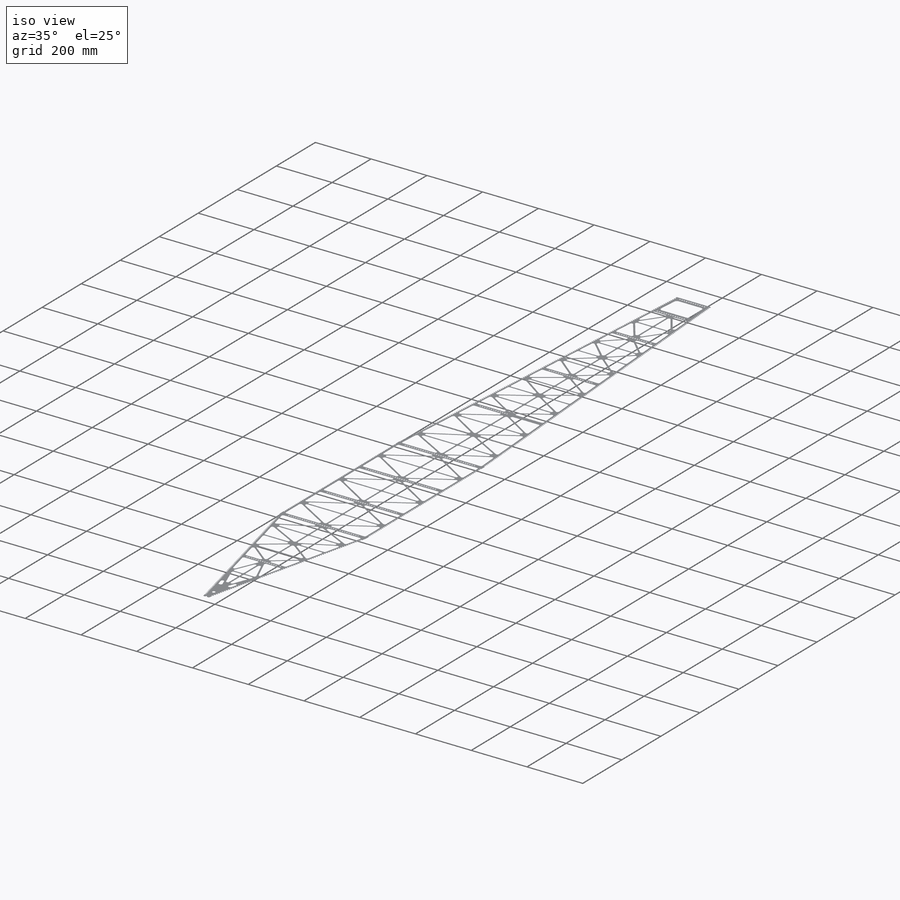
[diagram: iso view]
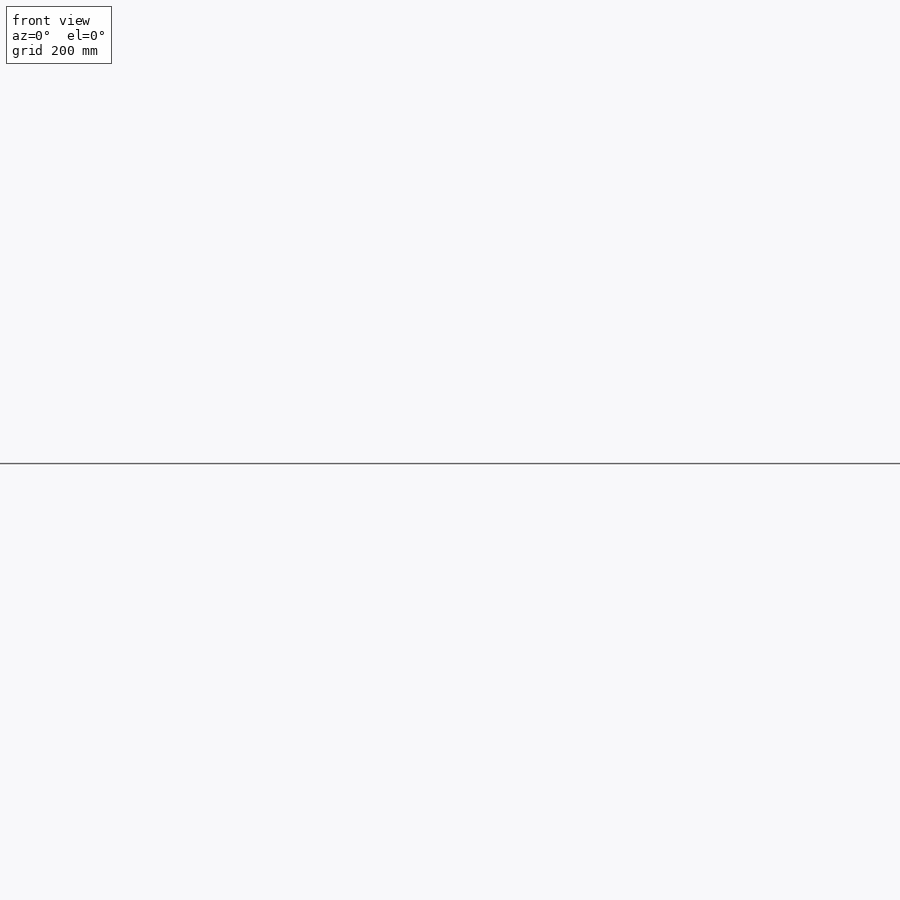
[diagram: front view]
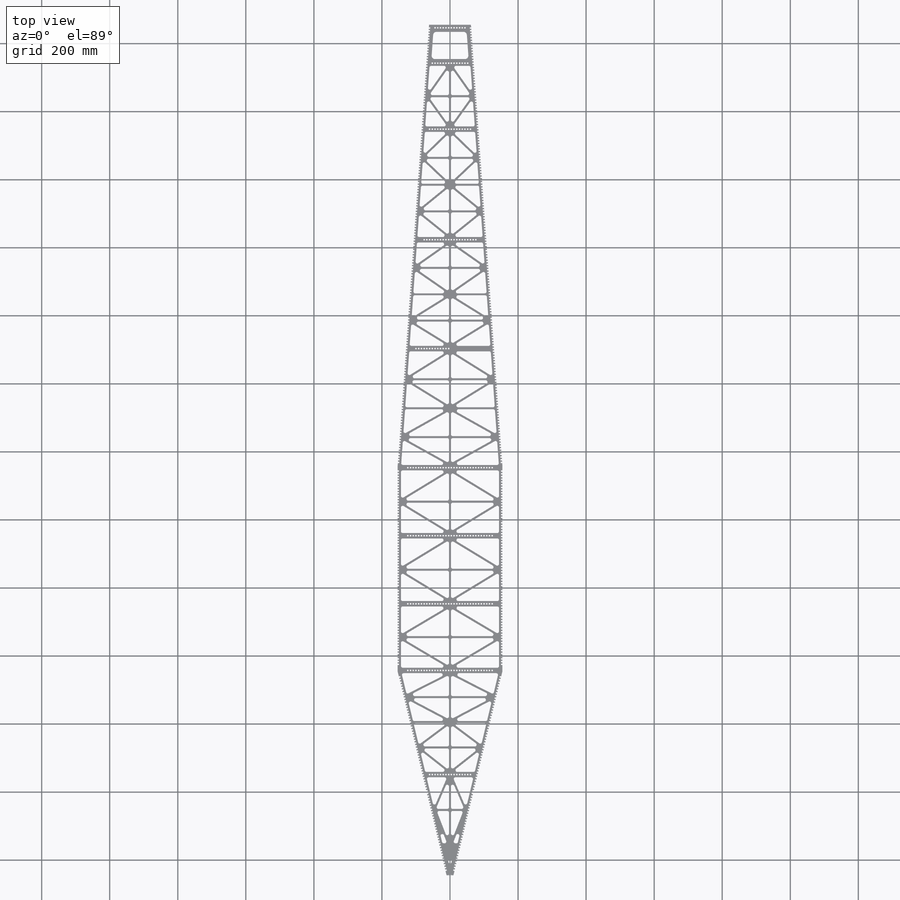
[diagram: top view]
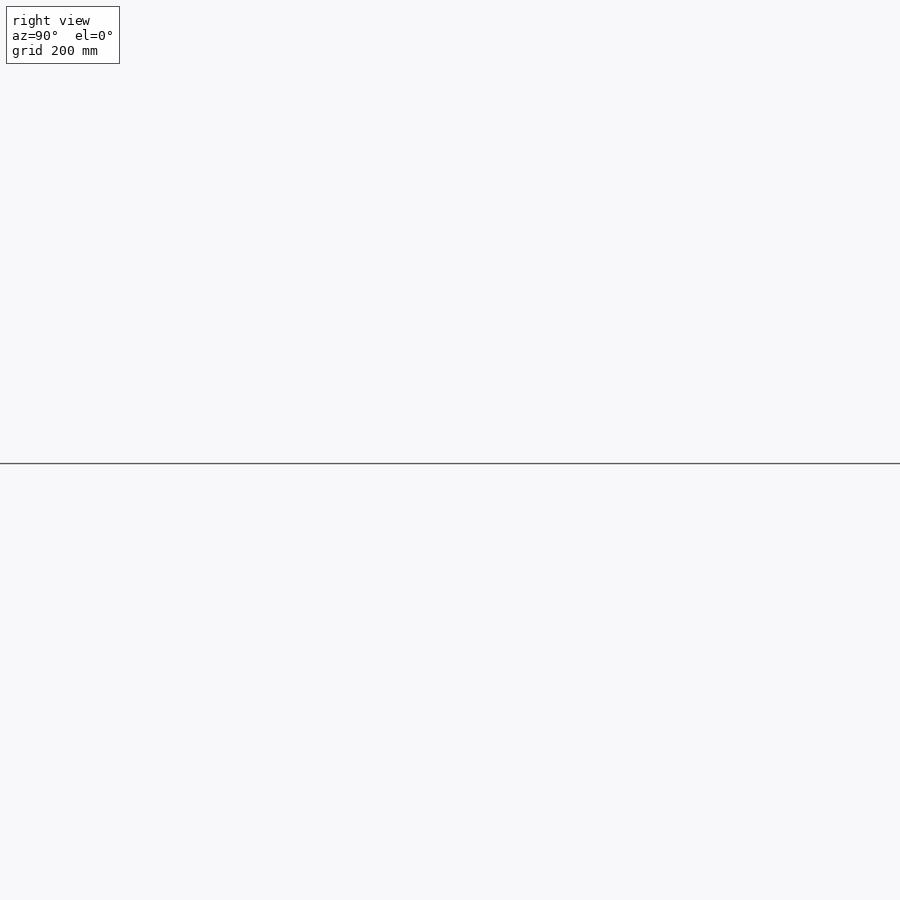
[diagram: right view]
SOLIDWORKS PART (.sldprt)
format: sldprt  version: not decoded by parser v0  size: 6,854,144 bytes
history: native  units: mm
features: sketch x7, cut_extrude x4, extrude x2, material x1 (+13 scaffold rows collapsed)
feature tree (27):
  scaffold x13  (default folders/planes/origin — collapsed)
  material  "Cedar"
  sketch  "Sketch1"  dims[c1.D48=10.0mm c1.D1=115.0mm c1.D2=300.0mm c2.D2=90.0deg c3.D2=300.0mm c4.D2=90.0deg c5.D2=300.0mm c6.D2=90.0deg c7.D2=300.0mm c7.D3=300.0mm c8.D2=300.0mm c8.D3=12.0mm c8.D4=7.0mm c8.D5=100.0mm c8.D6=~115.98855mm c8.D7=2.0mm c8.D8=4.0mm c8.D9=4.0mm c8.D11=~130.796154mm c8.D12=4.0mm c8.D13=4.0mm c9.D5=100.0mm c9.D15=189.0mm c9.D16=4.0mm c9.D17=4.0mm c9.D19=321.0mm c9.D20=4.0mm c9.D21=4.0mm c9.D23=321.0mm c9.D24=4.0mm c9.D25=4.0mm c9.D27=57.5mm c9.D6=116.0mm c10.D27=346.0mm c10.D28=300.0mm c11.D27=346.0mm c11.D28=4.0mm c11.D5=4.0mm c11.D7=2.0mm c11.D8=4.0mm c11.D10=2.0mm c11.D12=2.0mm c11.D13=4.0mm c12.D12=2.0mm c12.D13=4.0mm c12.D14=4.0mm c12.D15=100.0mm c12.D16=4.0mm c12.D17=2.0mm c12.D18=4.0mm c12.D19=4.0mm c12.D20=2.0mm c12.D21=4.0mm c12.D22=2.0mm c12.D23=4.0mm c12.D28=4.0mm c12.D29=196.0mm c12.D30=4.0mm c12.D31=196.0mm c12.D32=4.0mm c12.D33=202.0mm c12.D34=300.0mm c13.D33=202.0mm c13.D31=196.0mm c14.D33=196.0mm c14.D34=2.0mm c14.D35=4.0mm c14.D36=4.0mm c14.D37=300.0mm c14.D38=292.0mm c14.D39=2.0mm c14.D40=4.0mm c14.D41=4.0mm c15.D38=4.0mm c15.D43=4.0mm c15.D44=10.0mm c15.D45=10.0mm c15.D46=10.0mm c15.D47=10.0mm c15.D49=292.0mm c15.D50=4.0mm c15.D51=6.0mm c15.D12=2.0mm c15.D52=4.0mm c15.D27=346.0mm c15.D53=4.0mm c15.D29=196.0mm c15.D31=196.0mm c16.D49=292.0mm c16.D53=115.0mm c16.D54=100.0mm c16.D55=190.0mm c16.D56=321.0mm c16.D57=316.0mm c16.D6=316.0mm c17.D55=321.0mm c17.D56=190.0mm c17.D44=10.0mm c17.D9=4.0mm c17.D54=100.0mm c17.D57=~157.966821mm c18.D56=190.0mm c18.D57=~158.403846mm c18.D37=192.0mm c18.D49=300.0mm c19.D57=292.0mm c19.D58=57.5mm c19.D12=4.0mm c19.D13=4.0mm c19.D14=2.0mm c19.D47=190.0mm c19.D54=100.0mm c19.D56=4.0mm c20.D58=196.0mm c20.D59=300.0mm c20.D1=4.0mm c20.D2=4.0mm c20.D6=4.0mm c20.D7=150.0mm c20.D8=4.0mm c20.D9=196.0mm c20.D10=4.0mm c20.D11=196.0mm c20.D12=192.0mm c20.D13=4.0mm c20.D14=302.0mm c20.D15=290.0mm c20.D16=4.0mm c20.D17=346.0mm c20.D18=4.0mm c20.D19=316.0mm c20.D20=4.0mm c20.D21=321.0mm c20.D22=190.0mm c20.D23=4.0mm c20.D24=100.0mm c20.D25=10.0mm c20.D26=10.0mm c20.D27=150.0mm c20.D28=4.0mm c20.D29=2.0mm c20.D31=4.0mm c20.D33=4.0mm c20.D35=4.0mm c20.D37=4.0mm c20.D40=4.0mm c20.D42=4.0mm c20.D30=6.0 c20.D32=7.0 c20.D34=8.0 c20.D36=10.0 c20.D39=13.0 c20.D41=16.0 c20.D44=8.0]
  extrude  "Boss-Extrude2"  Depth=4mm
  sketch  "Sketch4"  dims[c1.D1=4.0mm c1.D2=4.0mm c1.D3=4.0mm c1.D5=20.0mm c1.D6=4.0mm c1.D7=4.0mm c1.D9=4.0mm c1.D10=4.0mm c1.D11=4.0mm c1.D12=4.0mm c1.D13=10.0mm c1.D15=4.0mm c1.D16=4.0mm c1.D17=14.0mm c2.D5=4.0mm c2.D6=4.0mm c2.D7=4.0mm c3.D7=~4.069956deg c4.D7=4.0mm c4.D9=4.0mm c4.D13=4.0mm c4.D19=4.0mm c4.D20=14.0mm c4.D21=4.0mm c4.D22=4.0mm c4.D24=4.0mm c4.D25=4.0mm c4.D26=4.0mm c4.D17=15.0mm c5.D20=15.0mm c5.D17=15.0mm c6.D20=15.0mm c6.D17=15.0mm c7.D20=15.0mm c7.D27=9.0mm c7.D28=10.0mm c7.D29=4.0mm c8.D27=4.0mm c8.D30=10.0mm c8.D4=162.0 c8.D14=72.0 c8.D18=74.0 c8.D8=162.0 c8.D9=72.0 c8.D23=74.0]
  extrude  "Boss-Extrude3"  Depth=4mm
  sketch  "Sketch5"  dims[D1=4.0mm D2=2.0mm D4=115.0mm D3=6.0]
  sketch  "Sketch6"  dims[D1=10.0mm D2=40.0mm]
  cut_extrude  "Cut-Extrude1"  Depth=10mm
  sketch  ":"  dims[c1.D8=5.0mm c1.D9=5.0mm c1.D13=5.0mm c1.D14=5.0mm c1.D22=5.0mm c1.D23=5.0mm c1.D31=5.0mm c1.D32=5.0mm c1.D40=5.0mm c1.D41=5.0mm c1.D42=5.0mm c1.D46=5.0mm c1.D53=5.0mm c1.D54=5.0mm c1.D62=5.0mm c1.D63=5.0mm c1.D71=5.0mm c1.D72=5.0mm c1.D80=5.0mm c1.D81=5.0mm c1.D89=5.0mm c1.D90=5.0mm c1.D97=5.0mm c1.D98=5.0mm c1.D106=5.0mm c1.D107=5.0mm c1.D1=6.0mm c1.D2=6.0mm c1.D3=6.0mm c1.D4=3.0mm c1.D5=6.0mm c1.D6=6.0mm c1.D7=6.0mm c1.D10=6.0mm c1.D11=6.0mm c1.D12=6.0mm c1.D15=3.0mm c1.D16=6.0mm c1.D17=6.0mm c1.D18=3.0mm c1.D19=6.0mm c1.D20=6.0mm c1.D21=6.0mm c1.D24=3.0mm c1.D25=3.0mm c1.D26=6.0mm c1.D27=6.0mm c1.D28=6.0mm c1.D29=6.0mm c1.D30=6.0mm c1.D33=6.0mm c1.D34=6.0mm c1.D35=3.0mm c1.D36=3.0mm c1.D37=6.0mm c1.D38=6.0mm c1.D39=6.0mm c2.D42=3.0mm c2.D43=3.0mm c2.D44=6.0mm c2.D45=6.0mm c2.D18=6.0mm c2.D24=6.0mm c2.D36=6.0mm c2.D47=6.0mm c2.D48=3.0mm c2.D49=6.0mm c2.D50=6.0mm c2.D51=6.0mm c2.D52=6.0mm c2.D55=6.0mm c2.D56=6.0mm c2.D57=6.0mm c2.D58=3.0mm c2.D59=6.0mm c2.D60=6.0mm c2.D61=6.0mm c2.D64=6.0mm c2.D65=6.0mm c2.D66=3.0mm c2.D67=6.0mm c2.D68=6.0mm c2.D69=6.0mm c2.D70=6.0mm c2.D73=6.0mm c2.D74=6.0mm c2.D75=3.0mm c2.D76=6.0mm c2.D77=6.0mm c2.D78=6.0mm c2.D79=6.0mm c2.D82=6.0mm c2.D83=6.0mm c2.D84=3.0mm c2.D85=6.0mm c2.D86=6.0mm c2.D87=6.0mm c2.D88=6.0mm c2.D91=6.0mm c2.D92=6.0mm c2.D93=3.0mm c2.D94=6.0mm c2.D95=6.0mm c2.D96=6.0mm c2.D99=6.0mm c2.D100=6.0mm c2.D101=3.0mm c2.D102=6.0mm c2.D103=6.0mm c2.D104=6.0mm c2.D105=6.0mm c2.D108=6.0mm c2.D109=6.0mm c2.D110=3.0mm c2.D111=90.0mm]
  cut_extrude  "Cut-Extrude2"  Depth=10mm
  cut_extrude  "Cut-Extrude3"  [1 undecoded]
  sketch  "Sketch7<5>"  dims[D1=10.0mm]
  cut_extrude  "Cut-Extrude4"  [1 undecoded]
  sketch  "Sketch7<6>"  dims[D1=10.0mm]
decode coverage: 11 of 13 modeling features carry decoded parameters
note: ~ marks probable driven/reference dimensions
note: 2 parameter values undecoded
note: suppression state not decoded; provenance and decode notes live in map.json
